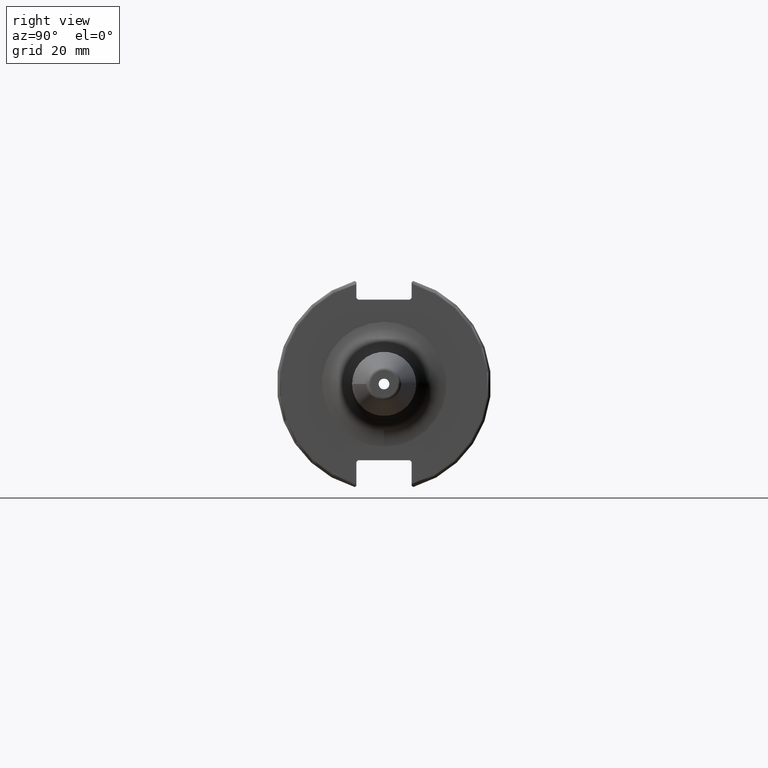
[diagram: clean part render]
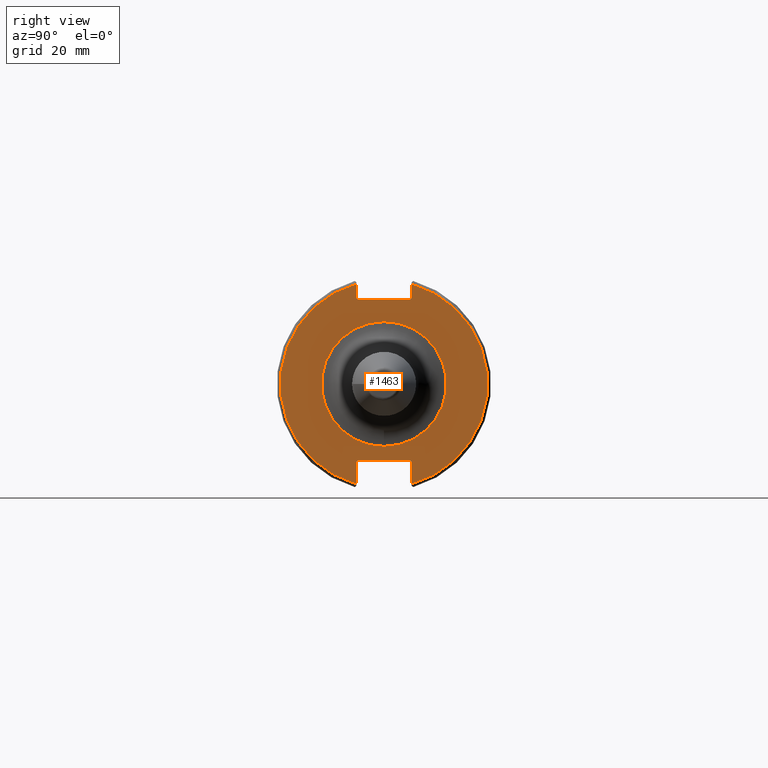
[diagram: same view with one face highlighted and labeled with its STEP entity id]
A machine part, right view. The second image highlights one B-rep face of the part: STEP entity #1463.
In plain terms, the highlighted planar face has unit normal (1, 0, 0).
Its self-contained STEP definition (entity closure, byte-faithful):
#108=FACE_BOUND('',#450,.T.);
#122=PLANE('',#1581);
#158=LINE('',#2215,#252);
#159=LINE('',#2217,#253);
#160=LINE('',#2219,#254);
#161=LINE('',#2221,#255);
#162=LINE('',#2223,#256);
#163=LINE('',#2227,#257);
#164=LINE('',#2229,#258);
#165=LINE('',#2231,#259);
#166=LINE('',#2233,#260);
#167=LINE('',#2234,#261);
#252=VECTOR('',#1778,10.);
#253=VECTOR('',#1779,10.);
#254=VECTOR('',#1780,10.);
#255=VECTOR('',#1781,10.);
#256=VECTOR('',#1782,10.);
#257=VECTOR('',#1785,10.);
#258=VECTOR('',#1786,10.);
#259=VECTOR('',#1787,10.);
#260=VECTOR('',#1788,10.);
#261=VECTOR('',#1789,10.);
#363=FACE_OUTER_BOUND('',#449,.T.);
#449=EDGE_LOOP('',(#1014,#1015,#1016,#1017,#1018,#1019,#1020,#1021,#1022,
#1023,#1024,#1025));
#450=EDGE_LOOP('',(#1026));
#550=CIRCLE('',#1578,18.5);
#552=CIRCLE('',#1582,30.75);
#553=CIRCLE('',#1583,30.75);
#620=VERTEX_POINT('',#2204);
#621=VERTEX_POINT('',#2211);
#622=VERTEX_POINT('',#2212);
#623=VERTEX_POINT('',#2214);
#624=VERTEX_POINT('',#2216);
#625=VERTEX_POINT('',#2218);
#626=VERTEX_POINT('',#2220);
#627=VERTEX_POINT('',#2222);
#628=VERTEX_POINT('',#2224);
#629=VERTEX_POINT('',#2226);
#630=VERTEX_POINT('',#2228);
#631=VERTEX_POINT('',#2230);
#632=VERTEX_POINT('',#2232);
#772=EDGE_CURVE('',#620,#620,#550,.T.);
#775=EDGE_CURVE('',#621,#622,#552,.T.);
#776=EDGE_CURVE('',#621,#623,#158,.T.);
#777=EDGE_CURVE('',#624,#623,#159,.T.);
#778=EDGE_CURVE('',#624,#625,#160,.T.);
#779=EDGE_CURVE('',#626,#625,#161,.T.);
#780=EDGE_CURVE('',#626,#627,#162,.T.);
#781=EDGE_CURVE('',#628,#627,#553,.T.);
#782=EDGE_CURVE('',#628,#629,#163,.T.);
#783=EDGE_CURVE('',#630,#629,#164,.T.);
#784=EDGE_CURVE('',#630,#631,#165,.T.);
#785=EDGE_CURVE('',#632,#631,#166,.T.);
#786=EDGE_CURVE('',#632,#622,#167,.T.);
#1014=ORIENTED_EDGE('',*,*,#775,.F.);
#1015=ORIENTED_EDGE('',*,*,#776,.T.);
#1016=ORIENTED_EDGE('',*,*,#777,.F.);
#1017=ORIENTED_EDGE('',*,*,#778,.T.);
#1018=ORIENTED_EDGE('',*,*,#779,.F.);
#1019=ORIENTED_EDGE('',*,*,#780,.T.);
#1020=ORIENTED_EDGE('',*,*,#781,.F.);
#1021=ORIENTED_EDGE('',*,*,#782,.T.);
#1022=ORIENTED_EDGE('',*,*,#783,.F.);
#1023=ORIENTED_EDGE('',*,*,#784,.T.);
#1024=ORIENTED_EDGE('',*,*,#785,.F.);
#1025=ORIENTED_EDGE('',*,*,#786,.T.);
#1026=ORIENTED_EDGE('',*,*,#772,.F.);
#1463=ADVANCED_FACE('',(#363,#108),#122,.T.);
#1578=AXIS2_PLACEMENT_3D('',#2206,#1767,#1768);
#1581=AXIS2_PLACEMENT_3D('',#2210,#1774,#1775);
#1582=AXIS2_PLACEMENT_3D('',#2213,#1776,#1777);
#1583=AXIS2_PLACEMENT_3D('',#2225,#1783,#1784);
#1767=DIRECTION('center_axis',(1.,0.,0.));
#1768=DIRECTION('ref_axis',(0.,-1.,-1.22464679914735E-16));
#1774=DIRECTION('center_axis',(1.,0.,0.));
#1775=DIRECTION('ref_axis',(0.,0.,-1.));
#1776=DIRECTION('center_axis',(-1.,0.,0.));
#1777=DIRECTION('ref_axis',(0.,1.,-6.12323399573677E-17));
#1778=DIRECTION('',(0.,0.,-1.));
#1779=DIRECTION('',(0.,0.707106781186549,0.707106781186546));
#1780=DIRECTION('',(0.,-1.,0.));
#1781=DIRECTION('',(0.,0.70710678118655,-0.707106781186545));
#1782=DIRECTION('',(0.,0.,1.));
#1783=DIRECTION('center_axis',(-1.,0.,0.));
#1784=DIRECTION('ref_axis',(0.,-1.,1.60812264967664E-16));
#1785=DIRECTION('',(0.,0.,1.));
#1786=DIRECTION('',(0.,-0.707106781186549,-0.707106781186546));
#1787=DIRECTION('',(0.,1.,0.));
#1788=DIRECTION('',(0.,-0.707106781186549,0.707106781186546));
#1789=DIRECTION('',(0.,0.,-1.));
#2204=CARTESIAN_POINT('',(19.05,-2.2655965784226E-15,-18.5));
#2206=CARTESIAN_POINT('Origin',(19.05,0.,0.));
#2210=CARTESIAN_POINT('Origin',(19.05,0.,0.));
#2211=CARTESIAN_POINT('',(19.05,8.19,29.6392712461019));
#2212=CARTESIAN_POINT('',(19.05,8.19,-29.6392712461019));
#2213=CARTESIAN_POINT('Origin',(19.05,0.,0.));
#2214=CARTESIAN_POINT('',(19.05,8.19,25.5));
#2215=CARTESIAN_POINT('',(19.05,8.19,12.5));
#2216=CARTESIAN_POINT('',(19.05,7.69,25.));
#2217=CARTESIAN_POINT('',(19.05,-0.35750000000001,16.9525));
#2218=CARTESIAN_POINT('',(19.05,-7.69,25.));
#2219=CARTESIAN_POINT('',(19.05,0.,25.));
#2220=CARTESIAN_POINT('',(19.05,-8.19,25.5));
#2221=CARTESIAN_POINT('',(19.05,0.357500000000014,16.9525));
#2222=CARTESIAN_POINT('',(19.05,-8.19,29.6392712461019));
#2223=CARTESIAN_POINT('',(19.05,-8.19,12.5));
#2224=CARTESIAN_POINT('',(19.05,-8.19,-29.6392712461019));
#2225=CARTESIAN_POINT('Origin',(19.05,0.,0.));
#2226=CARTESIAN_POINT('',(19.05,-8.19,-23.1));
#2227=CARTESIAN_POINT('',(19.05,-8.19,-11.3));
#2228=CARTESIAN_POINT('',(19.05,-7.69,-22.6));
#2229=CARTESIAN_POINT('',(19.05,-0.242499999999991,-15.1525));
#2230=CARTESIAN_POINT('',(19.05,7.69,-22.6));
#2231=CARTESIAN_POINT('',(19.05,-2.77555756156289E-16,-22.6));
#2232=CARTESIAN_POINT('',(19.05,8.19,-23.1));
#2233=CARTESIAN_POINT('',(19.05,0.242499999999989,-15.1525));
#2234=CARTESIAN_POINT('',(19.05,8.19,-11.3));